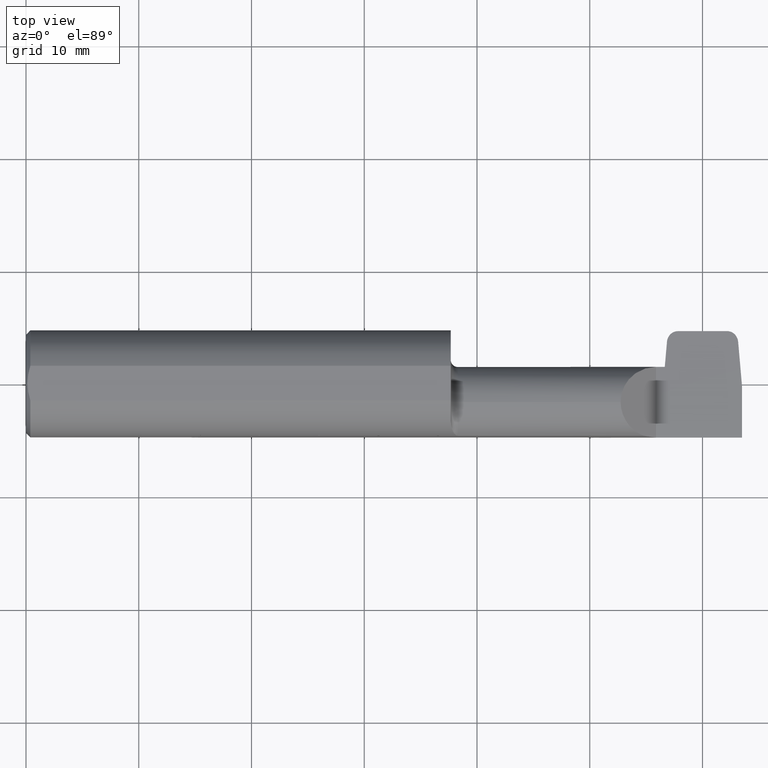
[diagram: clean part render]
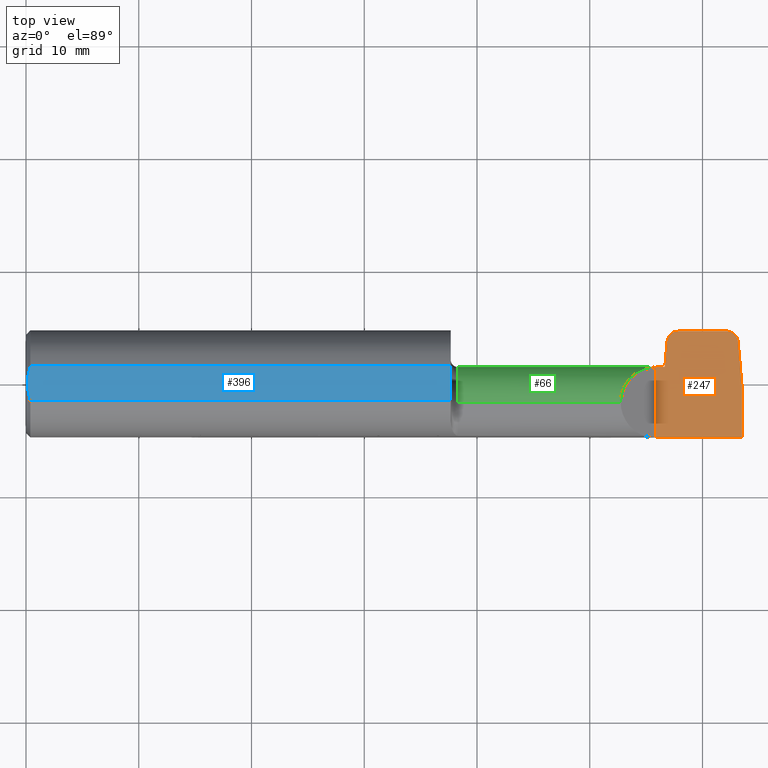
[diagram: same view with three faces highlighted in distinct colors, each labeled with its STEP entity id]
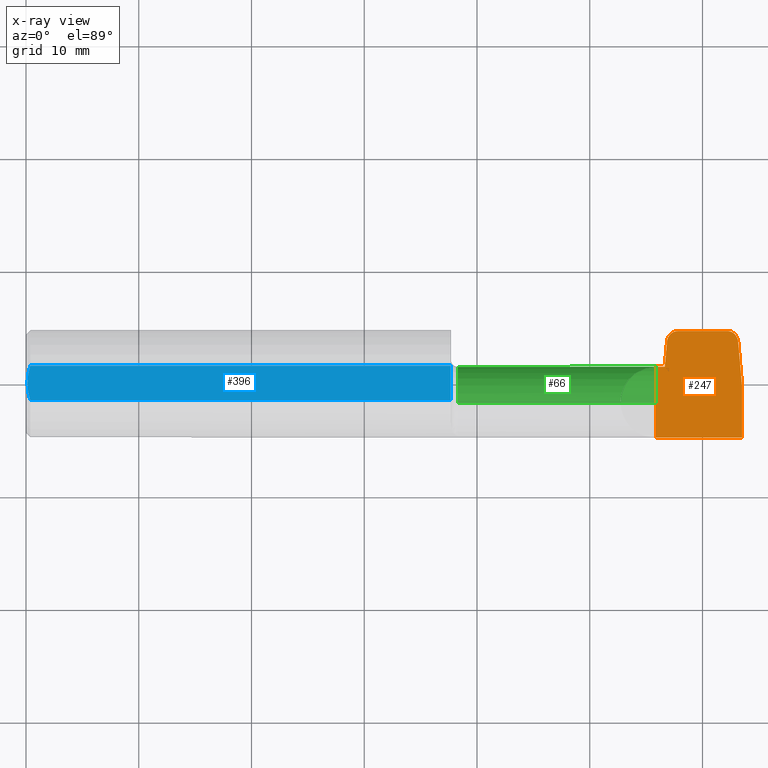
[diagram: x-ray of the same camera — body ghosted, the three highlighted faces saturated]
A machine part, top view with three faces highlighted in distinct colors.
The next image is the same camera in x-ray (body ghosted, the three faces saturated) — at least one of them is partly hidden behind the body in this view.
Their STEP definitions:

[orange] entity #247 — the highlighted planar face has unit normal (-0, 0, -1).
#13 = VECTOR ( 'NONE', #446, 39.37007874015748143 ) ;
#41 = VERTEX_POINT ( 'NONE', #175 ) ;
#53 = CARTESIAN_POINT ( 'NONE',  ( 2.500000000000000000, 0.2000000000000000111, -3.979970649922726459E-17 ) ) ;
#59 = ORIENTED_EDGE ( 'NONE', *, *, #416, .T. ) ;
#73 = CARTESIAN_POINT ( 'NONE',  ( 1.483000000000000096, 0.05964999999999988367, -3.979970649922724610E-17 ) ) ;
#88 = CARTESIAN_POINT ( 'NONE',  ( 2.276979723352248186, 0.1846500000000000363, -3.979970649922726459E-17 ) ) ;
#103 = LINE ( 'NONE', #73, #577 ) ;
#106 = VERTEX_POINT ( 'NONE', #914 ) ;
#138 = DIRECTION ( 'NONE',  ( -1.000000000000000000, 1.273735306860104948E-16, -8.009888927950517499E-33 ) ) ;
#141 = VERTEX_POINT ( 'NONE', #439 ) ;
#148 = EDGE_CURVE ( 'NONE', #187, #106, #898, .T. ) ;
#155 = CARTESIAN_POINT ( 'NONE',  ( 2.200000000000000178, -0.1873499999999999888, -3.979970649922726459E-17 ) ) ;
#161 = DIRECTION ( 'NONE',  ( 1.000000000000000000, -8.537024980200214395E-15, 0.000000000000000000 ) ) ;
#175 = CARTESIAN_POINT ( 'NONE',  ( 2.486615488638019844, 0.1476356649143464872, 0.000000000000000000 ) ) ;
#187 = VERTEX_POINT ( 'NONE', #508 ) ;
#201 = VECTOR ( 'NONE', #138, 39.37007874015748143 ) ;
#247 = ADVANCED_FACE ( 'NONE', ( #384 ), #539, .F. ) ;
#253 = VERTEX_POINT ( 'NONE', #155 ) ;
#269 = EDGE_CURVE ( 'NONE', #621, #141, #475, .T. ) ;
#282 = AXIS2_PLACEMENT_3D ( 'NONE', #863, #702, #456 ) ;
#290 = EDGE_CURVE ( 'NONE', #106, #768, #468, .T. ) ;
#301 = ORIENTED_EDGE ( 'NONE', *, *, #290, .T. ) ;
#303 = CARTESIAN_POINT ( 'NONE',  ( 2.447774584507903306, 0.1846500000000000086, -3.979970649922726459E-17 ) ) ;
#307 = EDGE_CURVE ( 'NONE', #41, #187, #363, .T. ) ;
#309 = CARTESIAN_POINT ( 'NONE',  ( 2.486615488638019844, 0.1476356649143464872, 0.000000000000000000 ) ) ;
#322 = CARTESIAN_POINT ( 'NONE',  ( 2.500000000000000000, -0.005350000000000019670, 0.000000000000000000 ) ) ;
#332 = VECTOR ( 'NONE', #910, 39.37007874015748854 ) ;
#338 = ORIENTED_EDGE ( 'NONE', *, *, #977, .F. ) ;
#363 =( BOUNDED_CURVE ( )  B_SPLINE_CURVE ( 3, ( #309, #624, #544, #303 ),
 .UNSPECIFIED., .F., .T. ) 
 B_SPLINE_CURVE_WITH_KNOTS ( ( 4, 4 ),
 ( 1.960722919233721884, 3.411297973623238722 ),
 .UNSPECIFIED. ) 
 CURVE ( )  GEOMETRIC_REPRESENTATION_ITEM ( )  RATIONAL_B_SPLINE_CURVE ( ( 1.000000000000000000, 0.8322058143701923649, 0.8322058143701923649, 1.000000000000000000 ) ) 
 REPRESENTATION_ITEM ( '' )  );
#378 = CARTESIAN_POINT ( 'NONE',  ( 2.255637476239533701, 0.1846500000000000086, -5.122214988120492918E-17 ) ) ;
#384 = FACE_OUTER_BOUND ( 'NONE', #430, .T. ) ;
#389 = DIRECTION ( 'NONE',  ( -1.000000000000000000, -0.000000000000000000, -0.000000000000000000 ) ) ;
#391 = CARTESIAN_POINT ( 'NONE',  ( 2.240080065056134995, 0.1698242063295301307, -5.122214988120492918E-17 ) ) ;
#407 = VERTEX_POINT ( 'NONE', #748 ) ;
#416 = EDGE_CURVE ( 'NONE', #732, #700, #767, .T. ) ;
#430 = EDGE_LOOP ( 'NONE', ( #689, #301, #750, #864, #876, #338, #880, #59, #900, #464 ) ) ;
#439 = CARTESIAN_POINT ( 'NONE',  ( 2.230441070989336083, 0.05964999999999991837, 0.000000000000000000 ) ) ;
#446 = DIRECTION ( 'NONE',  ( -0.000000000000000000, 1.000000000000000000, -0.000000000000000000 ) ) ;
#456 = DIRECTION ( 'NONE',  ( -1.000000000000000000, 0.000000000000000000, 0.000000000000000000 ) ) ;
#464 = ORIENTED_EDGE ( 'NONE', *, *, #307, .T. ) ;
#468 =( BOUNDED_CURVE ( )  B_SPLINE_CURVE ( 3, ( #88, #378, #391, #929 ),
 .UNSPECIFIED., .F., .T. ) 
 B_SPLINE_CURVE_WITH_KNOTS ( ( 4, 4 ),
 ( 6.013479987146141070, 7.464055041535656798 ),
 .UNSPECIFIED. ) 
 CURVE ( )  GEOMETRIC_REPRESENTATION_ITEM ( )  RATIONAL_B_SPLINE_CURVE ( ( 1.000000000000000000, 0.8322058143701924759, 0.8322058143701924759, 1.000000000000000000 ) ) 
 REPRESENTATION_ITEM ( '' )  );
#469 = CARTESIAN_POINT ( 'NONE',  ( 2.500000000000000000, -0.1873499999999999610, -3.979970649922724610E-17 ) ) ;
#475 = LINE ( 'NONE', #786, #855 ) ;
#476 = CARTESIAN_POINT ( 'NONE',  ( 2.229441070989335749, 0.05964999999999992530, 0.000000000000000000 ) ) ;
#508 = CARTESIAN_POINT ( 'NONE',  ( 2.447774584507903306, 0.1846500000000000086, -3.979970649922726459E-17 ) ) ;
#513 = VECTOR ( 'NONE', #654, 39.37007874015748854 ) ;
#519 = CARTESIAN_POINT ( 'NONE',  ( 2.200000000000000178, 0.1846500000000000363, -3.979970649922726459E-17 ) ) ;
#539 = PLANE ( 'NONE',  #282 ) ;
#544 = CARTESIAN_POINT ( 'NONE',  ( 2.469116831620616903, 0.1846499999999999808, -5.122214988120495383E-17 ) ) ;
#577 = VECTOR ( 'NONE', #950, 39.37007874015748143 ) ;
#583 = EDGE_CURVE ( 'NONE', #732, #253, #930, .T. ) ;
#600 = CARTESIAN_POINT ( 'NONE',  ( 2.483377153930075742, 0.1846499999999999808, 0.000000000000000000 ) ) ;
#621 = VERTEX_POINT ( 'NONE', #476 ) ;
#624 = CARTESIAN_POINT ( 'NONE',  ( 2.484674242804016053, 0.1698242063295300752, -5.122214988120495383E-17 ) ) ;
#649 = CARTESIAN_POINT ( 'NONE',  ( 2.200000000000000178, 0.2000000000000000111, -3.979970649922726459E-17 ) ) ;
#654 = DIRECTION ( 'NONE',  ( 0.08715574274765250373, 0.9961946980917459893, 0.000000000000000000 ) ) ;
#675 = LINE ( 'NONE', #600, #332 ) ;
#682 = CARTESIAN_POINT ( 'NONE',  ( 2.238138819222131648, 0.1476356649143465982, 0.000000000000000000 ) ) ;
#689 = ORIENTED_EDGE ( 'NONE', *, *, #148, .T. ) ;
#700 = VERTEX_POINT ( 'NONE', #322 ) ;
#702 = DIRECTION ( 'NONE',  ( -0.000000000000000000, 0.000000000000000000, -1.000000000000000000 ) ) ;
#714 = VECTOR ( 'NONE', #921, 39.37007874015748143 ) ;
#715 = EDGE_CURVE ( 'NONE', #141, #768, #963, .T. ) ;
#732 = VERTEX_POINT ( 'NONE', #878 ) ;
#748 = CARTESIAN_POINT ( 'NONE',  ( 2.200000000000000178, 0.05964999999999990449, -3.979970649922726459E-17 ) ) ;
#750 = ORIENTED_EDGE ( 'NONE', *, *, #715, .F. ) ;
#767 = LINE ( 'NONE', #53, #13 ) ;
#768 = VERTEX_POINT ( 'NONE', #682 ) ;
#786 = CARTESIAN_POINT ( 'NONE',  ( 2.229441070989335749, 0.05964999999999992530, 0.000000000000000000 ) ) ;
#792 = VECTOR ( 'NONE', #389, 39.37007874015748143 ) ;
#842 = LINE ( 'NONE', #649, #714 ) ;
#850 = EDGE_CURVE ( 'NONE', #41, #700, #675, .T. ) ;
#855 = VECTOR ( 'NONE', #161, 39.37007874015748143 ) ;
#863 = CARTESIAN_POINT ( 'NONE',  ( 2.200000000000000178, 0.2000000000000000111, -3.979970649922726459E-17 ) ) ;
#864 = ORIENTED_EDGE ( 'NONE', *, *, #269, .F. ) ;
#876 = ORIENTED_EDGE ( 'NONE', *, *, #947, .F. ) ;
#878 = CARTESIAN_POINT ( 'NONE',  ( 2.500000000000000000, -0.1873500000000000165, -3.979970649922726459E-17 ) ) ;
#880 = ORIENTED_EDGE ( 'NONE', *, *, #583, .F. ) ;
#881 = CARTESIAN_POINT ( 'NONE',  ( 2.230441070989336083, 0.05964999999999991837, 0.000000000000000000 ) ) ;
#898 = LINE ( 'NONE', #519, #201 ) ;
#900 = ORIENTED_EDGE ( 'NONE', *, *, #850, .F. ) ;
#910 = DIRECTION ( 'NONE',  ( 0.08715574274765187923, -0.9961946980917459893, 0.000000000000000000 ) ) ;
#914 = CARTESIAN_POINT ( 'NONE',  ( 2.276979723352248186, 0.1846500000000000363, -3.979970649922726459E-17 ) ) ;
#921 = DIRECTION ( 'NONE',  ( -0.000000000000000000, 1.000000000000000000, -0.000000000000000000 ) ) ;
#929 = CARTESIAN_POINT ( 'NONE',  ( 2.238138819222131648, 0.1476356649143465982, 0.000000000000000000 ) ) ;
#930 = LINE ( 'NONE', #469, #792 ) ;
#947 = EDGE_CURVE ( 'NONE', #407, #621, #103, .T. ) ;
#950 = DIRECTION ( 'NONE',  ( 1.000000000000000000, 0.000000000000000000, 0.000000000000000000 ) ) ;
#963 = LINE ( 'NONE', #881, #513 ) ;
#977 = EDGE_CURVE ( 'NONE', #253, #407, #842, .T. ) ;

[blue] entity #396 — the highlighted planar face has unit normal (-0, 0, -1).
#45 = VECTOR ( 'NONE', #502, 39.37007874015748143 ) ;
#51 = LINE ( 'NONE', #831, #45 ) ;
#86 = CARTESIAN_POINT ( 'NONE',  ( 0.01499999999999283677, -0.06039039658755173540, 0.1773499999999999799 ) ) ;
#118 = CARTESIAN_POINT ( 'NONE',  ( 2.500000000000000000, 0.06039039658753697637, 0.1773499999999999799 ) ) ;
#125 = ORIENTED_EDGE ( 'NONE', *, *, #580, .T. ) ;
#179 = ORIENTED_EDGE ( 'NONE', *, *, #896, .F. ) ;
#186 = VECTOR ( 'NONE', #507, 39.37007874015748143 ) ;
#193 = CARTESIAN_POINT ( 'NONE',  ( 1.483000000000000096, 0.1000000000000000056, 0.1773499999999999799 ) ) ;
#244 = DIRECTION ( 'NONE',  ( -1.000000000000000000, 0.000000000000000000, 0.000000000000000000 ) ) ;
#255 = CARTESIAN_POINT ( 'NONE',  ( 0.01499999999999970281, 0.06039039658753697637, 0.1773499999999999799 ) ) ;
#329 = ORIENTED_EDGE ( 'NONE', *, *, #615, .T. ) ;
#339 = CARTESIAN_POINT ( 'NONE',  ( 1.483000000000000096, -0.06039039658755174234, 0.1773499999999999799 ) ) ;
#381 = VERTEX_POINT ( 'NONE', #618 ) ;
#386 = VERTEX_POINT ( 'NONE', #638 ) ;
#396 = ADVANCED_FACE ( 'NONE', ( #797 ), #946, .F. ) ;
#397 = CARTESIAN_POINT ( 'NONE',  ( 0.000000000000000000, 0.1000000000000000056, 0.1773499999999999799 ) ) ;
#420 = DIRECTION ( 'NONE',  ( 1.000000000000000000, 0.000000000000000000, 0.000000000000000000 ) ) ;
#472 = CARTESIAN_POINT ( 'NONE',  ( 0.008696589530555638714, -0.04083523520126732670, 0.1773499999999999799 ) ) ;
#477 = ORIENTED_EDGE ( 'NONE', *, *, #801, .F. ) ;
#502 = DIRECTION ( 'NONE',  ( -1.000000000000000000, -0.000000000000000000, -0.000000000000000000 ) ) ;
#507 = DIRECTION ( 'NONE',  ( 0.000000000000000000, -1.000000000000000000, 0.000000000000000000 ) ) ;
#554 = CARTESIAN_POINT ( 'NONE',  ( 0.004999999999999616730, 2.171911098286967231E-17, 0.1773499999999999799 ) ) ;
#580 = EDGE_CURVE ( 'NONE', #386, #381, #616, .T. ) ;
#615 = EDGE_CURVE ( 'NONE', #659, #386, #664, .T. ) ;
#616 = B_SPLINE_CURVE_WITH_KNOTS ( 'NONE', 3,
 ( #944, #853, #472, #86 ),
 .UNSPECIFIED., .F., .F.,
 ( 4, 4 ),
 ( 0.005540749947065446226, 0.007089657205383098626 ),
 .UNSPECIFIED. ) ;
#618 = CARTESIAN_POINT ( 'NONE',  ( 0.01499999999999283677, -0.06039039658755173540, 0.1773499999999999799 ) ) ;
#638 = CARTESIAN_POINT ( 'NONE',  ( 0.004999999999999616730, 2.171911098286967231E-17, 0.1773499999999999799 ) ) ;
#659 = VERTEX_POINT ( 'NONE', #255 ) ;
#664 = B_SPLINE_CURVE_WITH_KNOTS ( 'NONE', 3,
 ( #867, #778, #925, #554 ),
 .UNSPECIFIED., .F., .F.,
 ( 4, 4 ),
 ( 0.003992862456818214133, 0.005540749947065446226 ),
 .UNSPECIFIED. ) ;
#686 = LINE ( 'NONE', #118, #885 ) ;
#717 = DIRECTION ( 'NONE',  ( -0.000000000000000000, 0.000000000000000000, -1.000000000000000000 ) ) ;
#727 = ORIENTED_EDGE ( 'NONE', *, *, #888, .F. ) ;
#746 = CARTESIAN_POINT ( 'NONE',  ( 1.483000000000000096, 0.06039039658753698331, 0.1773499999999999799 ) ) ;
#759 = EDGE_LOOP ( 'NONE', ( #179, #727, #329, #125, #477 ) ) ;
#765 = VERTEX_POINT ( 'NONE', #339 ) ;
#778 = CARTESIAN_POINT ( 'NONE',  ( 0.008685564003747106576, 0.04080103055012378188, 0.1773499999999999799 ) ) ;
#779 = VERTEX_POINT ( 'NONE', #746 ) ;
#797 = FACE_OUTER_BOUND ( 'NONE', #759, .T. ) ;
#801 = EDGE_CURVE ( 'NONE', #765, #381, #51, .T. ) ;
#831 = CARTESIAN_POINT ( 'NONE',  ( 2.500000000000000000, -0.06039039658753697637, 0.1773499999999999799 ) ) ;
#853 = CARTESIAN_POINT ( 'NONE',  ( 0.004999999999999610659, -0.02074845265125289245, 0.1773499999999999799 ) ) ;
#867 = CARTESIAN_POINT ( 'NONE',  ( 0.01499999999999970281, 0.06039039658753697637, 0.1773499999999999799 ) ) ;
#883 = AXIS2_PLACEMENT_3D ( 'NONE', #397, #717, #244 ) ;
#885 = VECTOR ( 'NONE', #420, 39.37007874015748143 ) ;
#888 = EDGE_CURVE ( 'NONE', #659, #779, #686, .T. ) ;
#892 = LINE ( 'NONE', #193, #186 ) ;
#896 = EDGE_CURVE ( 'NONE', #779, #765, #892, .T. ) ;
#925 = CARTESIAN_POINT ( 'NONE',  ( 0.004999999999999619332, 0.02073479230495994807, 0.1773499999999999799 ) ) ;
#944 = CARTESIAN_POINT ( 'NONE',  ( 0.004999999999999616730, 2.171911098286967231E-17, 0.1773499999999999799 ) ) ;
#946 = PLANE ( 'NONE',  #883 ) ;

[green] entity #66 — the highlighted cylindrical surface (edge-blend (fillet) strip) has radius 3.175 mm, axis along (-1, -0, -0).
#10 = LINE ( 'NONE', #221, #512 ) ;
#20 = CARTESIAN_POINT ( 'NONE',  ( 2.076349999999999696, 0.007247797425264607650, 0.1249999999999999306 ) ) ;
#36 = CARTESIAN_POINT ( 'NONE',  ( 2.127406436601749107, 0.05885865357521877228, 0.07394356339825008950 ) ) ;
#47 = LINE ( 'NONE', #596, #939 ) ;
#55 =( BOUNDED_CURVE ( )  B_SPLINE_CURVE ( 3, ( #180, #36, #20, #113 ),
 .UNSPECIFIED., .F., .T. ) 
 B_SPLINE_CURVE_WITH_KNOTS ( ( 4, 4 ),
 ( 4.723189190347703459, 6.283185307179586232 ),
 .UNSPECIFIED. ) 
 CURVE ( )  GEOMETRIC_REPRESENTATION_ITEM ( )  RATIONAL_B_SPLINE_CURVE ( ( 1.000000000000000000, 0.8072766023246975564, 0.8072766023246975564, 1.000000000000000000 ) ) 
 REPRESENTATION_ITEM ( '' )  );
#66 = ADVANCED_FACE ( 'NONE', ( #565 ), #735, .T. ) ;
#73 = CARTESIAN_POINT ( 'NONE',  ( 1.483000000000000096, 0.05964999999999988367, -3.979970649922724610E-17 ) ) ;
#94 = AXIS2_PLACEMENT_3D ( 'NONE', #414, #336, #572 ) ;
#103 = LINE ( 'NONE', #73, #577 ) ;
#105 = EDGE_LOOP ( 'NONE', ( #740, #993, #581, #569, #399, #422, #949, #774, #678, #341 ) ) ;
#113 = CARTESIAN_POINT ( 'NONE',  ( 2.076349999999999252, -0.06535000000000003306, 0.1249999999999999306 ) ) ;
#143 = VECTOR ( 'NONE', #404, 39.37007874015748143 ) ;
#178 = VERTEX_POINT ( 'NONE', #272 ) ;
#180 = CARTESIAN_POINT ( 'NONE',  ( 2.200000000000000178, 0.05964270978741119389, 0.001349999999999188004 ) ) ;
#190 = DIRECTION ( 'NONE',  ( 0.000000000000000000, 0.000000000000000000, 1.000000000000000000 ) ) ;
#207 = VERTEX_POINT ( 'NONE', #747 ) ;
#215 = CARTESIAN_POINT ( 'NONE',  ( 1.507999999999999785, -0.06535000000000003306, 0.000000000000000000 ) ) ;
#216 = CIRCLE ( 'NONE', #262, 0.1249999999999999306 ) ;
#221 = CARTESIAN_POINT ( 'NONE',  ( 1.483000000000000096, -0.06535000000000000531, -0.1249999999999999306 ) ) ;
#262 = AXIS2_PLACEMENT_3D ( 'NONE', #215, #753, #688 ) ;
#265 = DIRECTION ( 'NONE',  ( -1.000000000000000000, -0.000000000000000000, -0.000000000000000000 ) ) ;
#272 = CARTESIAN_POINT ( 'NONE',  ( 1.507999999999999785, -0.06535000000000000531, -0.1249999999999999306 ) ) ;
#289 = VERTEX_POINT ( 'NONE', #777 ) ;
#291 = CARTESIAN_POINT ( 'NONE',  ( 2.226944011631511344, 0.05840614090344291992, -0.02033691646133876235 ) ) ;
#295 =( BOUNDED_CURVE ( )  B_SPLINE_CURVE ( 3, ( #751, #291, #514, #426 ),
 .UNSPECIFIED., .F., .T. ) 
 B_SPLINE_CURVE_WITH_KNOTS ( ( 4, 4 ),
 ( 1.326450231515708511, 1.570796326794911879 ),
 .UNSPECIFIED. ) 
 CURVE ( )  GEOMETRIC_REPRESENTATION_ITEM ( )  RATIONAL_B_SPLINE_CURVE ( ( 1.000000000000000000, 0.9950307677608813961, 0.9950307677608813961, 1.000000000000000000 ) ) 
 REPRESENTATION_ITEM ( '' )  );
#310 = CARTESIAN_POINT ( 'NONE',  ( 1.507999999999999785, -0.06535000000000003306, 0.1249999999999999306 ) ) ;
#312 = DIRECTION ( 'NONE',  ( -1.000000000000000000, -0.000000000000000000, -0.000000000000000000 ) ) ;
#313 = CARTESIAN_POINT ( 'NONE',  ( 2.244504986094757459, -0.06535000000000003306, 0.000000000000000000 ) ) ;
#336 = DIRECTION ( 'NONE',  ( -1.000000000000000000, -0.000000000000000000, -0.000000000000000000 ) ) ;
#340 = CARTESIAN_POINT ( 'NONE',  ( 1.483000000000000096, -0.06535000000000003306, 0.000000000000000000 ) ) ;
#341 = ORIENTED_EDGE ( 'NONE', *, *, #923, .F. ) ;
#342 = EDGE_CURVE ( 'NONE', #289, #178, #10, .T. ) ;
#353 = CARTESIAN_POINT ( 'NONE',  ( 2.200000000000000178, 0.05964270978741119389, 0.001349999999999188004 ) ) ;
#357 = CARTESIAN_POINT ( 'NONE',  ( 2.233843439991192170, 0.05593696578449949136, -0.03024023694995829278 ) ) ;
#395 = CIRCLE ( 'NONE', #94, 0.1249999999999999306 ) ;
#399 = ORIENTED_EDGE ( 'NONE', *, *, #742, .F. ) ;
#400 = EDGE_CURVE ( 'NONE', #178, #521, #216, .T. ) ;
#404 = DIRECTION ( 'NONE',  ( -1.000000000000000000, -0.000000000000000000, -0.000000000000000000 ) ) ;
#407 = VERTEX_POINT ( 'NONE', #748 ) ;
#414 = CARTESIAN_POINT ( 'NONE',  ( 2.200000000000000178, -0.06535000000000003306, 0.000000000000000000 ) ) ;
#422 = ORIENTED_EDGE ( 'NONE', *, *, #658, .T. ) ;
#426 = CARTESIAN_POINT ( 'NONE',  ( 2.229441070989335749, 0.05964999999999992530, 0.000000000000000000 ) ) ;
#476 = CARTESIAN_POINT ( 'NONE',  ( 2.229441070989335749, 0.05964999999999992530, 0.000000000000000000 ) ) ;
#480 = CIRCLE ( 'NONE', #971, 0.1249999999999999445 ) ;
#496 = VECTOR ( 'NONE', #692, 39.37007874015748143 ) ;
#512 = VECTOR ( 'NONE', #312, 39.37007874015748143 ) ;
#514 = CARTESIAN_POINT ( 'NONE',  ( 2.228187870728068010, 0.05964999999999991143, -0.01020649707139107548 ) ) ;
#521 = VERTEX_POINT ( 'NONE', #310 ) ;
#526 = EDGE_CURVE ( 'NONE', #289, #574, #480, .T. ) ;
#527 = LINE ( 'NONE', #724, #496 ) ;
#543 = CARTESIAN_POINT ( 'NONE',  ( 1.483000000000000096, -0.06535000000000003306, 0.1249999999999999306 ) ) ;
#565 = FACE_OUTER_BOUND ( 'NONE', #105, .T. ) ;
#569 = ORIENTED_EDGE ( 'NONE', *, *, #967, .F. ) ;
#572 = DIRECTION ( 'NONE',  ( 0.000000000000000000, 0.000000000000000000, 1.000000000000000000 ) ) ;
#574 = VERTEX_POINT ( 'NONE', #694 ) ;
#577 = VECTOR ( 'NONE', #950, 39.37007874015748143 ) ;
#581 = ORIENTED_EDGE ( 'NONE', *, *, #400, .T. ) ;
#596 = CARTESIAN_POINT ( 'NONE',  ( 1.483000000000000984, 0.05593696578451206464, -0.03024023694990791641 ) ) ;
#610 = CARTESIAN_POINT ( 'NONE',  ( 2.076349999999999252, -0.06535000000000003306, 0.1249999999999999306 ) ) ;
#621 = VERTEX_POINT ( 'NONE', #476 ) ;
#629 = DIRECTION ( 'NONE',  ( 1.000000000000000000, -0.000000000000000000, -0.000000000000000000 ) ) ;
#658 = EDGE_CURVE ( 'NONE', #838, #407, #395, .T. ) ;
#678 = ORIENTED_EDGE ( 'NONE', *, *, #816, .F. ) ;
#688 = DIRECTION ( 'NONE',  ( 0.000000000000000000, 0.000000000000000000, -1.000000000000000000 ) ) ;
#692 = DIRECTION ( 'NONE',  ( -1.000000000000000000, -0.000000000000000000, -0.000000000000000000 ) ) ;
#694 = CARTESIAN_POINT ( 'NONE',  ( 2.244504986094757459, 0.05593696578449949136, -0.03024023694995829278 ) ) ;
#724 = CARTESIAN_POINT ( 'NONE',  ( 2.244504986094757459, 0.05593696578449949136, -0.03024023694995829278 ) ) ;
#735 = CYLINDRICAL_SURFACE ( 'NONE', #741, 0.1249999999999999306 ) ;
#740 = ORIENTED_EDGE ( 'NONE', *, *, #526, .F. ) ;
#741 = AXIS2_PLACEMENT_3D ( 'NONE', #340, #265, #190 ) ;
#742 = EDGE_CURVE ( 'NONE', #838, #962, #55, .T. ) ;
#747 = CARTESIAN_POINT ( 'NONE',  ( 2.225728036773835239, 0.05593696578449956075, -0.03024023694995809849 ) ) ;
#748 = CARTESIAN_POINT ( 'NONE',  ( 2.200000000000000178, 0.05964999999999990449, -3.979970649922726459E-17 ) ) ;
#751 = CARTESIAN_POINT ( 'NONE',  ( 2.225728036773835239, 0.05593696578449956075, -0.03024023694995809849 ) ) ;
#753 = DIRECTION ( 'NONE',  ( 1.000000000000000000, 0.000000000000000000, 0.000000000000000000 ) ) ;
#769 = EDGE_CURVE ( 'NONE', #207, #621, #295, .T. ) ;
#774 = ORIENTED_EDGE ( 'NONE', *, *, #769, .F. ) ;
#777 = CARTESIAN_POINT ( 'NONE',  ( 2.244504986094757459, -0.06535000000000003306, -0.1249999999999999861 ) ) ;
#807 = VERTEX_POINT ( 'NONE', #357 ) ;
#816 = EDGE_CURVE ( 'NONE', #807, #207, #47, .T. ) ;
#838 = VERTEX_POINT ( 'NONE', #353 ) ;
#851 = LINE ( 'NONE', #543, #143 ) ;
#906 = DIRECTION ( 'NONE',  ( -1.000000000000000000, -0.000000000000000000, -0.000000000000000000 ) ) ;
#923 = EDGE_CURVE ( 'NONE', #574, #807, #527, .T. ) ;
#934 = DIRECTION ( 'NONE',  ( 0.000000000000000000, 0.000000000000000000, 1.000000000000000000 ) ) ;
#939 = VECTOR ( 'NONE', #906, 39.37007874015748143 ) ;
#947 = EDGE_CURVE ( 'NONE', #407, #621, #103, .T. ) ;
#949 = ORIENTED_EDGE ( 'NONE', *, *, #947, .T. ) ;
#950 = DIRECTION ( 'NONE',  ( 1.000000000000000000, 0.000000000000000000, 0.000000000000000000 ) ) ;
#962 = VERTEX_POINT ( 'NONE', #610 ) ;
#967 = EDGE_CURVE ( 'NONE', #962, #521, #851, .T. ) ;
#971 = AXIS2_PLACEMENT_3D ( 'NONE', #313, #629, #934 ) ;
#993 = ORIENTED_EDGE ( 'NONE', *, *, #342, .T. ) ;